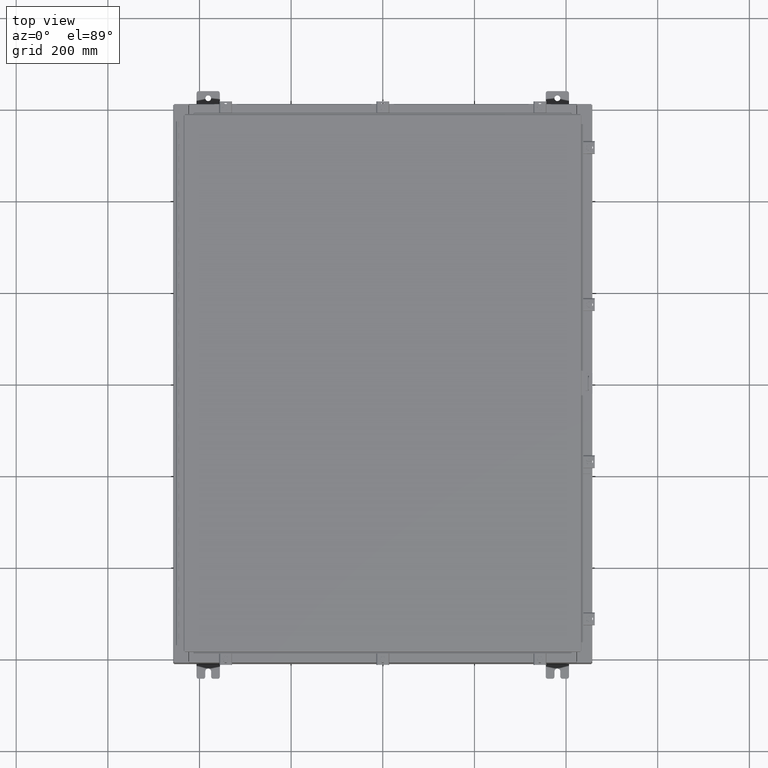
[diagram: clean part render]
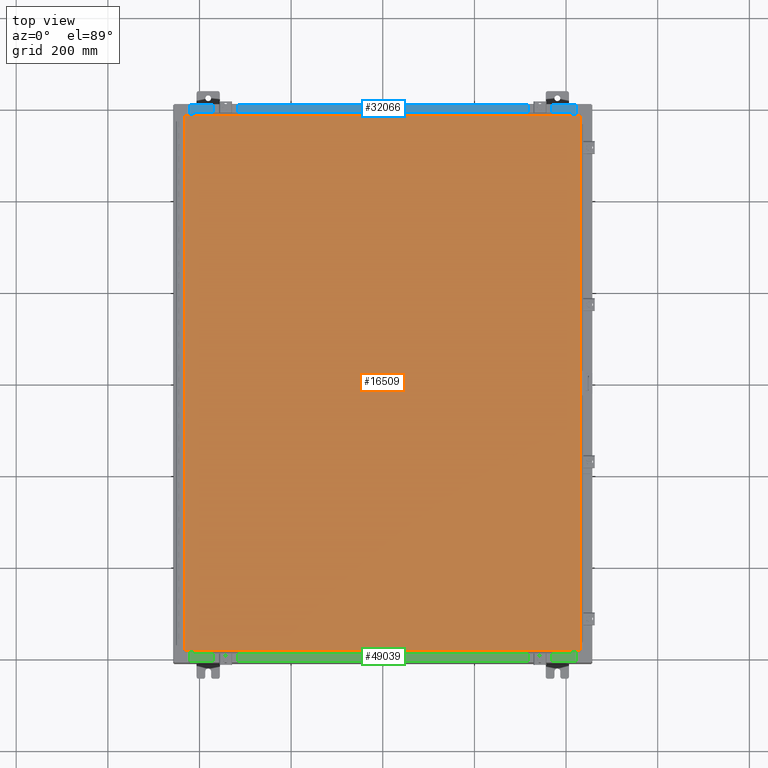
[diagram: same view with three faces highlighted in distinct colors, each labeled with its STEP entity id]
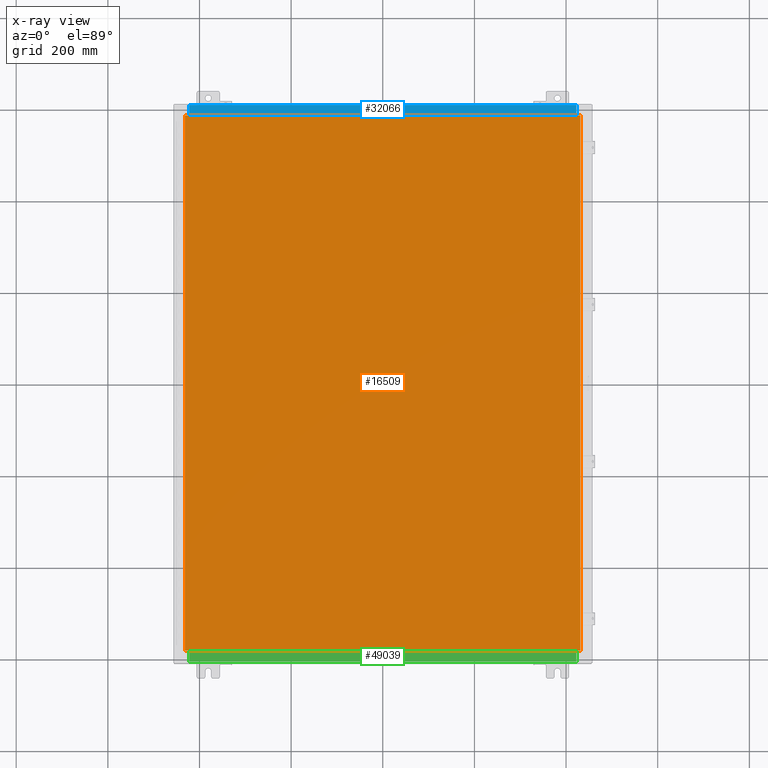
[diagram: x-ray of the same camera — body ghosted, the three highlighted faces saturated]
A machine part, top view with three faces highlighted in distinct colors.
The next image is the same camera in x-ray (body ghosted, the three faces saturated) — at least one of them is partly hidden behind the body in this view.
Their STEP definitions:

[orange] entity #16509 — the highlighted planar face has unit normal (0, 0, -1).
#706 = FACE_OUTER_BOUND ( 'NONE', #1971, .T. ) ;
#789 = DIRECTION ( 'NONE',  ( -1.000000000000000000, 0.0000000000000000000, -0.0000000000000000000 ) ) ;
#1971 = EDGE_LOOP ( 'NONE', ( #25700, #8278, #7969, #52670 ) ) ;
#4175 = AXIS2_PLACEMENT_3D ( 'NONE', #21569, #25748, #789 ) ;
#5549 = LINE ( 'NONE', #29295, #49860 ) ;
#6959 = VERTEX_POINT ( 'NONE', #10999 ) ;
#7660 = EDGE_CURVE ( 'NONE', #35774, #38628, #5549, .T. ) ;
#7969 = ORIENTED_EDGE ( 'NONE', *, *, #23705, .T. ) ;
#8278 = ORIENTED_EDGE ( 'NONE', *, *, #46768, .T. ) ;
#10999 = CARTESIAN_POINT ( 'NONE',  ( 16.99029999999999800, 23.00630000000001000, 1.946441695485787500E-015 ) ) ;
#11353 = LINE ( 'NONE', #42325, #32199 ) ;
#12470 = VERTEX_POINT ( 'NONE', #27519 ) ;
#13578 = DIRECTION ( 'NONE',  ( 1.000000000000000000, -0.0000000000000000000, -0.0000000000000000000 ) ) ;
#16509 = ADVANCED_FACE ( 'NONE', ( #706 ), #17376, .F. ) ;
#17376 = PLANE ( 'NONE',  #4175 ) ;
#17786 = CARTESIAN_POINT ( 'NONE',  ( -16.99029999999999800, -23.00630000000000300, 1.946441695485787500E-015 ) ) ;
#21513 = VECTOR ( 'NONE', #37369, 39.37007874015748100 ) ;
#21569 = CARTESIAN_POINT ( 'NONE',  ( 0.0000000000000000000, 0.0000000000000000000, 0.0000000000000000000 ) ) ;
#22792 = LINE ( 'NONE', #32619, #21513 ) ;
#23705 = EDGE_CURVE ( 'NONE', #6959, #35774, #22792, .T. ) ;
#24693 = CARTESIAN_POINT ( 'NONE',  ( -16.99029999999998400, 23.00630000000001000, -1.297627796990525000E-015 ) ) ;
#25700 = ORIENTED_EDGE ( 'NONE', *, *, #48027, .T. ) ;
#25748 = DIRECTION ( 'NONE',  ( 0.0000000000000000000, 0.0000000000000000000, -1.000000000000000000 ) ) ;
#27519 = CARTESIAN_POINT ( 'NONE',  ( 16.99029999999999800, -23.00630000000000300, -2.048885995248197400E-016 ) ) ;
#29295 = CARTESIAN_POINT ( 'NONE',  ( -16.99029999999998400, 23.00630000000001000, -1.297627796990525000E-015 ) ) ;
#29820 = DIRECTION ( 'NONE',  ( 0.0000000000000000000, -1.000000000000000000, 0.0000000000000000000 ) ) ;
#32199 = VECTOR ( 'NONE', #46510, 39.37007874015748100 ) ;
#32619 = CARTESIAN_POINT ( 'NONE',  ( 16.99029999999999800, 23.00630000000001000, 1.946441695485787500E-015 ) ) ;
#35774 = VERTEX_POINT ( 'NONE', #24693 ) ;
#36470 = CARTESIAN_POINT ( 'NONE',  ( -16.99029999999999800, -23.00630000000000300, 1.946441695485787500E-015 ) ) ;
#37369 = DIRECTION ( 'NONE',  ( -1.000000000000000000, -0.0000000000000000000, -0.0000000000000000000 ) ) ;
#38054 = LINE ( 'NONE', #17786, #47799 ) ;
#38628 = VERTEX_POINT ( 'NONE', #36470 ) ;
#42325 = CARTESIAN_POINT ( 'NONE',  ( 16.99029999999999800, -23.00630000000000300, -2.048885995248197400E-016 ) ) ;
#46510 = DIRECTION ( 'NONE',  ( 0.0000000000000000000, 1.000000000000000000, 0.0000000000000000000 ) ) ;
#46768 = EDGE_CURVE ( 'NONE', #12470, #6959, #11353, .T. ) ;
#47799 = VECTOR ( 'NONE', #13578, 39.37007874015748100 ) ;
#48027 = EDGE_CURVE ( 'NONE', #38628, #12470, #38054, .T. ) ;
#49860 = VECTOR ( 'NONE', #29820, 39.37007874015748100 ) ;
#52670 = ORIENTED_EDGE ( 'NONE', *, *, #7660, .T. ) ;

[blue] entity #32066 — the highlighted planar face has unit normal (0, 0, 1).
#64 = VERTEX_POINT ( 'NONE', #24653 ) ;
#1532 = CARTESIAN_POINT ( 'NONE',  ( 16.63720000000000700, -1.287299999999999900, 4.000000000000004400 ) ) ;
#2764 = AXIS2_PLACEMENT_3D ( 'NONE', #40494, #53001, #28074 ) ;
#3096 = ORIENTED_EDGE ( 'NONE', *, *, #26109, .F. ) ;
#4404 = DIRECTION ( 'NONE',  ( -0.0000000000000000000, 1.000000000000000000, -3.566381192773190000E-015 ) ) ;
#4632 = CARTESIAN_POINT ( 'NONE',  ( -16.63719999999999600, -1.287299999999999200, 4.000000000000004400 ) ) ;
#5676 = EDGE_CURVE ( 'NONE', #49440, #8601, #7049, .T. ) ;
#7049 = LINE ( 'NONE', #41982, #47463 ) ;
#7751 = CARTESIAN_POINT ( 'NONE',  ( -16.63719999999999600, -0.08769999999999972300, 4.000000000000000900 ) ) ;
#7796 = CARTESIAN_POINT ( 'NONE',  ( 16.63720000000000400, -1.300299999999999800, 4.000000000000004400 ) ) ;
#8469 = LINE ( 'NONE', #8618, #40423 ) ;
#8601 = VERTEX_POINT ( 'NONE', #7751 ) ;
#8618 = CARTESIAN_POINT ( 'NONE',  ( -16.63719999999999600, -0.07469999999999973900, 4.000000000000000900 ) ) ;
#9625 = ORIENTED_EDGE ( 'NONE', *, *, #43023, .F. ) ;
#17046 = DIRECTION ( 'NONE',  ( -1.000000000000000000, 3.284023746380717400E-017, -1.171208052571274300E-031 ) ) ;
#18863 = EDGE_CURVE ( 'NONE', #48463, #8601, #8469, .T. ) ;
#20688 = VECTOR ( 'NONE', #49280, 39.37007874015748100 ) ;
#21743 = ORIENTED_EDGE ( 'NONE', *, *, #5676, .T. ) ;
#24653 = CARTESIAN_POINT ( 'NONE',  ( 16.63720000000000400, -1.287299999999999900, 4.000000000000004400 ) ) ;
#26109 = EDGE_CURVE ( 'NONE', #49440, #64, #33049, .T. ) ;
#28074 = DIRECTION ( 'NONE',  ( 0.0000000000000000000, -1.000000000000000000, 3.566381192773190000E-015 ) ) ;
#29550 = EDGE_LOOP ( 'NONE', ( #46365, #9625, #3096, #21743 ) ) ;
#29993 = LINE ( 'NONE', #1532, #52126 ) ;
#32066 = ADVANCED_FACE ( 'NONE', ( #50656 ), #48821, .T. ) ;
#33049 = LINE ( 'NONE', #7796, #20688 ) ;
#40423 = VECTOR ( 'NONE', #4404, 39.37007874015748100 ) ;
#40494 = CARTESIAN_POINT ( 'NONE',  ( 0.0000000000000000000, 1.425992975200418500E-014, 4.000000000000000900 ) ) ;
#41982 = CARTESIAN_POINT ( 'NONE',  ( -2.880088825576348200E-018, -0.08769999999999972300, 4.000000000000000900 ) ) ;
#43023 = EDGE_CURVE ( 'NONE', #64, #48463, #29993, .T. ) ;
#43255 = DIRECTION ( 'NONE',  ( -1.000000000000000000, 0.0000000000000000000, 0.0000000000000000000 ) ) ;
#46365 = ORIENTED_EDGE ( 'NONE', *, *, #18863, .F. ) ;
#47463 = VECTOR ( 'NONE', #17046, 39.37007874015748100 ) ;
#48463 = VERTEX_POINT ( 'NONE', #4632 ) ;
#48821 = PLANE ( 'NONE',  #2764 ) ;
#49280 = DIRECTION ( 'NONE',  ( -0.0000000000000000000, -1.000000000000000000, 3.566381192773190000E-015 ) ) ;
#49440 = VERTEX_POINT ( 'NONE', #52959 ) ;
#50656 = FACE_OUTER_BOUND ( 'NONE', #29550, .T. ) ;
#52126 = VECTOR ( 'NONE', #43255, 39.37007874015748100 ) ;
#52959 = CARTESIAN_POINT ( 'NONE',  ( 16.63720000000000700, -0.08769999999999937600, 4.000000000000000900 ) ) ;
#53001 = DIRECTION ( 'NONE',  ( 0.0000000000000000000, 3.566381192773190000E-015, 1.000000000000000000 ) ) ;

[green] entity #49039 — the highlighted planar face has unit normal (-0, -0, 1).
#663 = CARTESIAN_POINT ( 'NONE',  ( 16.63720000000000700, -1.287299999999999900, 4.000000000000004400 ) ) ;
#1153 = CARTESIAN_POINT ( 'NONE',  ( 16.63720000000000400, -1.300299999999999800, 4.000000000000004400 ) ) ;
#3672 = ORIENTED_EDGE ( 'NONE', *, *, #45961, .F. ) ;
#4393 = DIRECTION ( 'NONE',  ( 0.0000000000000000000, -1.000000000000000000, 3.566381192773190000E-015 ) ) ;
#6132 = LINE ( 'NONE', #663, #15932 ) ;
#6552 = AXIS2_PLACEMENT_3D ( 'NONE', #41752, #29351, #4393 ) ;
#7180 = VECTOR ( 'NONE', #26327, 39.37007874015748100 ) ;
#7505 = VECTOR ( 'NONE', #38693, 39.37007874015748100 ) ;
#8304 = EDGE_CURVE ( 'NONE', #12688, #13634, #29355, .T. ) ;
#12688 = VERTEX_POINT ( 'NONE', #33298 ) ;
#13634 = VERTEX_POINT ( 'NONE', #23362 ) ;
#15083 = DIRECTION ( 'NONE',  ( -1.000000000000000000, 3.284023746380717400E-017, -1.171208052571274300E-031 ) ) ;
#15932 = VECTOR ( 'NONE', #33987, 39.37007874015748100 ) ;
#16802 = PLANE ( 'NONE',  #6552 ) ;
#17750 = LINE ( 'NONE', #35828, #27527 ) ;
#22355 = EDGE_CURVE ( 'NONE', #37255, #13634, #17750, .T. ) ;
#23362 = CARTESIAN_POINT ( 'NONE',  ( -16.63719999999999600, -0.08769999999999972300, 4.000000000000000900 ) ) ;
#26327 = DIRECTION ( 'NONE',  ( -0.0000000000000000000, 1.000000000000000000, -3.566381192773190000E-015 ) ) ;
#26495 = CARTESIAN_POINT ( 'NONE',  ( -16.63719999999999600, -0.07469999999999973900, 4.000000000000000900 ) ) ;
#27527 = VECTOR ( 'NONE', #15083, 39.37007874015748100 ) ;
#29210 = ORIENTED_EDGE ( 'NONE', *, *, #33828, .F. ) ;
#29351 = DIRECTION ( 'NONE',  ( 0.0000000000000000000, 3.566381192773190000E-015, 1.000000000000000000 ) ) ;
#29355 = LINE ( 'NONE', #26495, #7180 ) ;
#33298 = CARTESIAN_POINT ( 'NONE',  ( -16.63719999999999600, -1.287299999999999200, 4.000000000000004400 ) ) ;
#33828 = EDGE_CURVE ( 'NONE', #35616, #12688, #6132, .T. ) ;
#33987 = DIRECTION ( 'NONE',  ( -1.000000000000000000, 0.0000000000000000000, 0.0000000000000000000 ) ) ;
#35616 = VERTEX_POINT ( 'NONE', #48549 ) ;
#35828 = CARTESIAN_POINT ( 'NONE',  ( -2.880088825576348200E-018, -0.08769999999999972300, 4.000000000000000900 ) ) ;
#37255 = VERTEX_POINT ( 'NONE', #52380 ) ;
#38528 = EDGE_LOOP ( 'NONE', ( #43184, #29210, #3672, #46115 ) ) ;
#38693 = DIRECTION ( 'NONE',  ( -0.0000000000000000000, -1.000000000000000000, 3.566381192773190000E-015 ) ) ;
#41752 = CARTESIAN_POINT ( 'NONE',  ( 0.0000000000000000000, 1.425992975200418500E-014, 4.000000000000000900 ) ) ;
#43184 = ORIENTED_EDGE ( 'NONE', *, *, #8304, .F. ) ;
#45961 = EDGE_CURVE ( 'NONE', #37255, #35616, #53111, .T. ) ;
#46115 = ORIENTED_EDGE ( 'NONE', *, *, #22355, .T. ) ;
#46411 = FACE_OUTER_BOUND ( 'NONE', #38528, .T. ) ;
#48549 = CARTESIAN_POINT ( 'NONE',  ( 16.63720000000000400, -1.287299999999999900, 4.000000000000004400 ) ) ;
#49039 = ADVANCED_FACE ( 'NONE', ( #46411 ), #16802, .T. ) ;
#52380 = CARTESIAN_POINT ( 'NONE',  ( 16.63720000000000700, -0.08769999999999937600, 4.000000000000000900 ) ) ;
#53111 = LINE ( 'NONE', #1153, #7505 ) ;